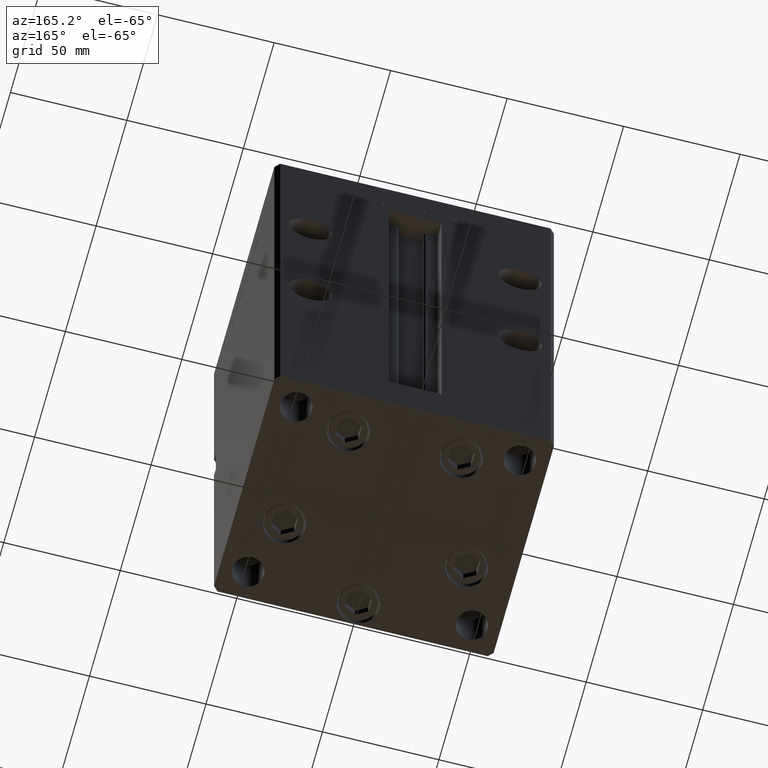
[diagram: clean part render]
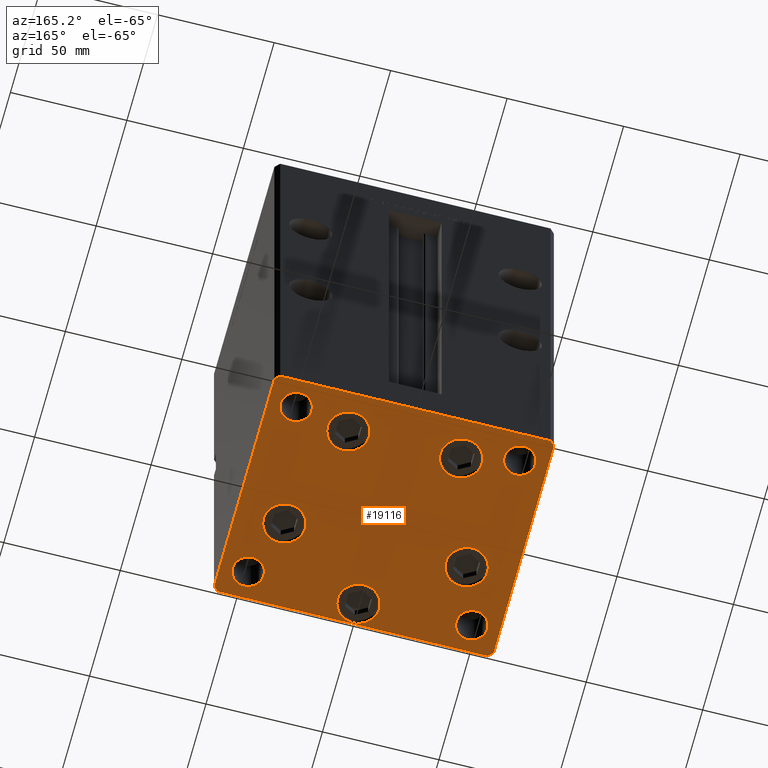
[diagram: same view with one face highlighted and labeled with its STEP entity id]
A machine part, auxiliary view. The second image highlights one B-rep face of the part: STEP entity #19116.
In plain terms, the highlighted planar face has unit normal (0, 0, -1).
Its self-contained STEP definition (entity closure, byte-faithful):
#249 = ORIENTED_EDGE ( 'NONE', *, *, #43363, .T. ) ;
#356 = EDGE_CURVE ( 'NONE', #24445, #52879, #9690, .T. ) ;
#359 = CARTESIAN_POINT ( 'NONE',  ( 24.19288941894911460, 33.71875000000000711, 0.000000000000000000 ) ) ;
#565 = DIRECTION ( 'NONE',  ( -0.000000000000000000, 0.000000000000000000, 1.000000000000000000 ) ) ;
#1030 = AXIS2_PLACEMENT_3D ( 'NONE', #47040, #9472, #10006 ) ;
#1078 = VERTEX_POINT ( 'NONE', #52244 ) ;
#1247 = EDGE_LOOP ( 'NONE', ( #249, #14469 ) ) ;
#1662 = AXIS2_PLACEMENT_3D ( 'NONE', #21854, #37790, #42650 ) ;
#2189 = CIRCLE ( 'NONE', #32414, 6.749999999999999112 ) ;
#2761 = FACE_BOUND ( 'NONE', #25464, .T. ) ;
#2776 = CIRCLE ( 'NONE', #1030, 9.000000000000001776 ) ;
#3144 = ORIENTED_EDGE ( 'NONE', *, *, #26812, .T. ) ;
#3220 = EDGE_CURVE ( 'NONE', #7242, #52632, #5831, .T. ) ;
#3376 = VERTEX_POINT ( 'NONE', #46270 ) ;
#3641 = CARTESIAN_POINT ( 'NONE',  ( -60.00000000000000000, -49.00000000000000000, 0.000000000000000000 ) ) ;
#3853 = EDGE_LOOP ( 'NONE', ( #11308, #44624 ) ) ;
#4370 = VERTEX_POINT ( 'NONE', #11200 ) ;
#4982 = CARTESIAN_POINT ( 'NONE',  ( -41.25000000000000000, 39.00000000000000000, 0.000000000000000000 ) ) ;
#5831 = LINE ( 'NONE', #22337, #18432 ) ;
#6250 = CIRCLE ( 'NONE', #8835, 6.749999999999999112 ) ;
#6850 = DIRECTION ( 'NONE',  ( 1.000000000000000000, 0.000000000000000000, 0.000000000000000000 ) ) ;
#6937 = VERTEX_POINT ( 'NONE', #37192 ) ;
#7088 = CARTESIAN_POINT ( 'NONE',  ( -48.00000000000000000, -39.00000000000000000, 0.000000000000000000 ) ) ;
#7091 = FACE_BOUND ( 'NONE', #34753, .T. ) ;
#7185 = EDGE_LOOP ( 'NONE', ( #28994, #42823 ) ) ;
#7242 = VERTEX_POINT ( 'NONE', #3641 ) ;
#7571 = VERTEX_POINT ( 'NONE', #46245 ) ;
#7625 = VERTEX_POINT ( 'NONE', #37131 ) ;
#7907 = DIRECTION ( 'NONE',  ( 0.7071067811865474617, 0.7071067811865474617, 0.000000000000000000 ) ) ;
#8078 = CARTESIAN_POINT ( 'NONE',  ( 5.082284216461515748E-15, -41.50000000000000000, 0.000000000000000000 ) ) ;
#8598 = DIRECTION ( 'NONE',  ( 1.000000000000000000, 0.000000000000000000, 0.000000000000000000 ) ) ;
#8645 = EDGE_LOOP ( 'NONE', ( #50178, #47326 ) ) ;
#8743 = DIRECTION ( 'NONE',  ( 1.000000000000000000, 0.000000000000000000, 0.000000000000000000 ) ) ;
#8835 = AXIS2_PLACEMENT_3D ( 'NONE', #11313, #10242, #23477 ) ;
#9142 = DIRECTION ( 'NONE',  ( -7.080503983578803823E-16, 1.000000000000000000, 0.000000000000000000 ) ) ;
#9257 = CIRCLE ( 'NONE', #43798, 9.000000000000000000 ) ;
#9289 = VERTEX_POINT ( 'NONE', #35224 ) ;
#9337 = EDGE_CURVE ( 'NONE', #13796, #7571, #47939, .T. ) ;
#9472 = DIRECTION ( 'NONE',  ( 0.000000000000000000, -0.000000000000000000, -1.000000000000000000 ) ) ;
#9610 = CARTESIAN_POINT ( 'NONE',  ( 41.25000000000000000, 38.99999999999999289, 0.000000000000000000 ) ) ;
#9690 = CIRCLE ( 'NONE', #34706, 9.000000000000000000 ) ;
#10006 = DIRECTION ( 'NONE',  ( 1.000000000000000000, 0.000000000000000000, 0.000000000000000000 ) ) ;
#10242 = DIRECTION ( 'NONE',  ( 0.000000000000000000, -0.000000000000000000, -1.000000000000000000 ) ) ;
#10265 = CIRCLE ( 'NONE', #17168, 9.000000000000001776 ) ;
#10933 = ORIENTED_EDGE ( 'NONE', *, *, #50967, .T. ) ;
#11026 = CARTESIAN_POINT ( 'NONE',  ( -57.99999999999999289, 50.99999999999997868, 0.000000000000000000 ) ) ;
#11200 = CARTESIAN_POINT ( 'NONE',  ( 59.99999999999994316, 49.00000000000000000, 0.000000000000000000 ) ) ;
#11308 = ORIENTED_EDGE ( 'NONE', *, *, #43534, .F. ) ;
#11313 = CARTESIAN_POINT ( 'NONE',  ( 48.00000000000000000, -38.99999999999999289, 0.000000000000000000 ) ) ;
#11697 = FACE_BOUND ( 'NONE', #1247, .T. ) ;
#11815 = VERTEX_POINT ( 'NONE', #30996 ) ;
#12028 = EDGE_CURVE ( 'NONE', #49027, #7242, #26337, .T. ) ;
#12664 = CIRCLE ( 'NONE', #48944, 9.000000000000001776 ) ;
#12909 = DIRECTION ( 'NONE',  ( 1.000000000000000000, 0.000000000000000000, 0.000000000000000000 ) ) ;
#13012 = CIRCLE ( 'NONE', #16516, 6.749999999999999112 ) ;
#13213 = ORIENTED_EDGE ( 'NONE', *, *, #9337, .F. ) ;
#13340 = DIRECTION ( 'NONE',  ( 0.000000000000000000, -0.000000000000000000, -1.000000000000000000 ) ) ;
#13796 = VERTEX_POINT ( 'NONE', #4982 ) ;
#14145 = VERTEX_POINT ( 'NONE', #37900 ) ;
#14469 = ORIENTED_EDGE ( 'NONE', *, *, #34794, .T. ) ;
#14954 = AXIS2_PLACEMENT_3D ( 'NONE', #15496, #15232, #15759 ) ;
#15085 = LINE ( 'NONE', #11026, #18161 ) ;
#15232 = DIRECTION ( 'NONE',  ( 0.000000000000000000, -0.000000000000000000, -1.000000000000000000 ) ) ;
#15496 = CARTESIAN_POINT ( 'NONE',  ( -24.19288941894912170, 33.71875000000000000, 0.000000000000000000 ) ) ;
#15616 = DIRECTION ( 'NONE',  ( 1.000000000000000000, 0.000000000000000000, 0.000000000000000000 ) ) ;
#15724 = ORIENTED_EDGE ( 'NONE', *, *, #12028, .T. ) ;
#15759 = DIRECTION ( 'NONE',  ( 1.000000000000000000, 0.000000000000000000, 0.000000000000000000 ) ) ;
#15901 = CARTESIAN_POINT ( 'NONE',  ( -48.00000000000000000, 39.00000000000000000, 0.000000000000000000 ) ) ;
#15965 = CARTESIAN_POINT ( 'NONE',  ( 48.00000000000000000, 38.99999999999999289, 0.000000000000000000 ) ) ;
#16351 = EDGE_CURVE ( 'NONE', #50414, #3376, #2776, .T. ) ;
#16458 = VERTEX_POINT ( 'NONE', #31358 ) ;
#16516 = AXIS2_PLACEMENT_3D ( 'NONE', #15901, #24006, #41000 ) ;
#16518 = VERTEX_POINT ( 'NONE', #9610 ) ;
#16688 = CIRCLE ( 'NONE', #14954, 9.000000000000000000 ) ;
#16698 = EDGE_CURVE ( 'NONE', #21205, #1078, #46803, .T. ) ;
#16711 = CARTESIAN_POINT ( 'NONE',  ( -39.12657522565562829, -13.83333333333333925, 0.000000000000000000 ) ) ;
#16905 = CARTESIAN_POINT ( 'NONE',  ( -60.00000000000000000, 48.99999999999995737, 0.000000000000000000 ) ) ;
#17073 = DIRECTION ( 'NONE',  ( 1.000000000000000000, 0.000000000000000000, 0.000000000000000000 ) ) ;
#17168 = AXIS2_PLACEMENT_3D ( 'NONE', #18197, #30609, #22787 ) ;
#17261 = CARTESIAN_POINT ( 'NONE',  ( 39.12657522565562829, -13.83333333333332860, 0.000000000000000000 ) ) ;
#17480 = CARTESIAN_POINT ( 'NONE',  ( 57.99999999999993605, 51.00000000000000711, 0.000000000000000000 ) ) ;
#18035 = EDGE_CURVE ( 'NONE', #7625, #9289, #31512, .T. ) ;
#18161 = VECTOR ( 'NONE', #28313, 1000.000000000000114 ) ;
#18197 = CARTESIAN_POINT ( 'NONE',  ( 24.19288941894911460, 33.71875000000000711, 0.000000000000000000 ) ) ;
#18432 = VECTOR ( 'NONE', #51264, 1000.000000000000114 ) ;
#18551 = CARTESIAN_POINT ( 'NONE',  ( -33.19288941894912170, 33.71875000000000000, 0.000000000000000000 ) ) ;
#18700 = VERTEX_POINT ( 'NONE', #48386 ) ;
#18718 = AXIS2_PLACEMENT_3D ( 'NONE', #7088, #35468, #27918 ) ;
#18888 = DIRECTION ( 'NONE',  ( 0.000000000000000000, -0.000000000000000000, -1.000000000000000000 ) ) ;
#19033 = CARTESIAN_POINT ( 'NONE',  ( -48.00000000000000000, 39.00000000000000000, 0.000000000000000000 ) ) ;
#19116 = ADVANCED_FACE ( 'NONE', ( #52249, #11697, #27922, #7091, #27650, #23329, #2761, #40600, #19277, #24132 ), #23868, .T. ) ;
#19140 = EDGE_CURVE ( 'NONE', #52879, #24445, #16688, .T. ) ;
#19235 = VERTEX_POINT ( 'NONE', #37067 ) ;
#19277 = FACE_OUTER_BOUND ( 'NONE', #30353, .T. ) ;
#19341 = CARTESIAN_POINT ( 'NONE',  ( -41.25000000000000000, -39.00000000000000000, 0.000000000000000000 ) ) ;
#19651 = ORIENTED_EDGE ( 'NONE', *, *, #16698, .T. ) ;
#19694 = DIRECTION ( 'NONE',  ( 1.000000000000000000, 0.000000000000000000, 0.000000000000000000 ) ) ;
#19789 = EDGE_CURVE ( 'NONE', #19235, #32804, #22623, .T. ) ;
#21119 = EDGE_CURVE ( 'NONE', #1078, #21205, #6250, .T. ) ;
#21205 = VERTEX_POINT ( 'NONE', #29568 ) ;
#21640 = DIRECTION ( 'NONE',  ( 0.000000000000000000, -0.000000000000000000, -1.000000000000000000 ) ) ;
#21854 = CARTESIAN_POINT ( 'NONE',  ( -48.00000000000000000, -39.00000000000000000, 0.000000000000000000 ) ) ;
#22172 = DIRECTION ( 'NONE',  ( 1.000000000000000000, 0.000000000000000000, 0.000000000000000000 ) ) ;
#22174 = EDGE_CURVE ( 'NONE', #6937, #14145, #32193, .T. ) ;
#22290 = VERTEX_POINT ( 'NONE', #50476 ) ;
#22337 = CARTESIAN_POINT ( 'NONE',  ( -60.00000000000000000, -49.00000000000000000, 0.000000000000000000 ) ) ;
#22623 = CIRCLE ( 'NONE', #24490, 9.000000000000000000 ) ;
#22752 = ORIENTED_EDGE ( 'NONE', *, *, #356, .T. ) ;
#22787 = DIRECTION ( 'NONE',  ( 1.000000000000000000, 0.000000000000000000, 0.000000000000000000 ) ) ;
#23130 = CARTESIAN_POINT ( 'NONE',  ( 48.00000000000000000, -38.99999999999999289, 0.000000000000000000 ) ) ;
#23329 = FACE_BOUND ( 'NONE', #3853, .T. ) ;
#23346 = CIRCLE ( 'NONE', #36246, 9.000000000000001776 ) ;
#23477 = DIRECTION ( 'NONE',  ( 1.000000000000000000, 0.000000000000000000, 0.000000000000000000 ) ) ;
#23629 = ORIENTED_EDGE ( 'NONE', *, *, #52743, .F. ) ;
#23821 = DIRECTION ( 'NONE',  ( -0.7071067811865487940, 0.7071067811865463515, 0.000000000000000000 ) ) ;
#23868 = PLANE ( 'NONE',  #48641 ) ;
#24006 = DIRECTION ( 'NONE',  ( -0.000000000000000000, 0.000000000000000000, 1.000000000000000000 ) ) ;
#24012 = CARTESIAN_POINT ( 'NONE',  ( 5.082284216461515748E-15, -41.50000000000000000, 0.000000000000000000 ) ) ;
#24132 = FACE_BOUND ( 'NONE', #7185, .T. ) ;
#24445 = VERTEX_POINT ( 'NONE', #42478 ) ;
#24490 = AXIS2_PLACEMENT_3D ( 'NONE', #24012, #18888, #19694 ) ;
#25464 = EDGE_LOOP ( 'NONE', ( #50592, #19651 ) ) ;
#26256 = ORIENTED_EDGE ( 'NONE', *, *, #3220, .T. ) ;
#26337 = LINE ( 'NONE', #16905, #35922 ) ;
#26500 = CIRCLE ( 'NONE', #18718, 6.749999999999999112 ) ;
#26586 = EDGE_LOOP ( 'NONE', ( #38145, #51853 ) ) ;
#26812 = EDGE_CURVE ( 'NONE', #11815, #22290, #30696, .T. ) ;
#27139 = DIRECTION ( 'NONE',  ( -0.000000000000000000, 0.000000000000000000, 1.000000000000000000 ) ) ;
#27650 = FACE_BOUND ( 'NONE', #26586, .T. ) ;
#27903 = CARTESIAN_POINT ( 'NONE',  ( -60.00000000000000000, 48.99999999999995737, 0.000000000000000000 ) ) ;
#27918 = DIRECTION ( 'NONE',  ( 1.000000000000000000, 0.000000000000000000, 0.000000000000000000 ) ) ;
#27922 = FACE_BOUND ( 'NONE', #8645, .T. ) ;
#28313 = DIRECTION ( 'NONE',  ( -0.7071067811865451302, -0.7071067811865500152, 0.000000000000000000 ) ) ;
#28668 = DIRECTION ( 'NONE',  ( 1.000000000000000000, 0.000000000000000000, 0.000000000000000000 ) ) ;
#28755 = AXIS2_PLACEMENT_3D ( 'NONE', #16711, #29129, #12909 ) ;
#28994 = ORIENTED_EDGE ( 'NONE', *, *, #45835, .T. ) ;
#29129 = DIRECTION ( 'NONE',  ( 0.000000000000000000, -0.000000000000000000, -1.000000000000000000 ) ) ;
#29253 = VERTEX_POINT ( 'NONE', #47143 ) ;
#29568 = CARTESIAN_POINT ( 'NONE',  ( 41.25000000000000000, -38.99999999999999289, 0.000000000000000000 ) ) ;
#29573 = EDGE_CURVE ( 'NONE', #16518, #16458, #2189, .T. ) ;
#29685 = LINE ( 'NONE', #46167, #51844 ) ;
#29734 = DIRECTION ( 'NONE',  ( 1.000000000000000000, 1.196361017915039486E-16, 0.000000000000000000 ) ) ;
#29915 = EDGE_CURVE ( 'NONE', #52632, #7625, #46752, .T. ) ;
#30353 = EDGE_LOOP ( 'NONE', ( #26256, #47684, #37077, #47786, #31105, #3144, #10933, #15724 ) ) ;
#30392 = AXIS2_PLACEMENT_3D ( 'NONE', #23130, #30411, #42846 ) ;
#30411 = DIRECTION ( 'NONE',  ( 0.000000000000000000, -0.000000000000000000, -1.000000000000000000 ) ) ;
#30422 = DIRECTION ( 'NONE',  ( -1.000000000000000000, -2.392722035830079958E-16, 0.000000000000000000 ) ) ;
#30609 = DIRECTION ( 'NONE',  ( 0.000000000000000000, -0.000000000000000000, -1.000000000000000000 ) ) ;
#30696 = LINE ( 'NONE', #17480, #32300 ) ;
#30996 = CARTESIAN_POINT ( 'NONE',  ( 57.99999999999993605, 51.00000000000000711, 0.000000000000000000 ) ) ;
#31013 = AXIS2_PLACEMENT_3D ( 'NONE', #37585, #565, #17073 ) ;
#31105 = ORIENTED_EDGE ( 'NONE', *, *, #45507, .T. ) ;
#31358 = CARTESIAN_POINT ( 'NONE',  ( 54.75000000000000000, 38.99999999999999289, 0.000000000000000000 ) ) ;
#31512 = LINE ( 'NONE', #53068, #40785 ) ;
#31719 = VERTEX_POINT ( 'NONE', #52512 ) ;
#32193 = CIRCLE ( 'NONE', #28755, 9.000000000000001776 ) ;
#32300 = VECTOR ( 'NONE', #30422, 1000.000000000000000 ) ;
#32414 = AXIS2_PLACEMENT_3D ( 'NONE', #15965, #53260, #48665 ) ;
#32459 = VECTOR ( 'NONE', #29734, 1000.000000000000000 ) ;
#32497 = DIRECTION ( 'NONE',  ( -0.000000000000000000, 0.000000000000000000, 1.000000000000000000 ) ) ;
#32709 = CARTESIAN_POINT ( 'NONE',  ( -39.12657522565562829, -13.83333333333333925, 0.000000000000000000 ) ) ;
#32804 = VERTEX_POINT ( 'NONE', #46560 ) ;
#33133 = EDGE_CURVE ( 'NONE', #3376, #50414, #12664, .T. ) ;
#33371 = DIRECTION ( 'NONE',  ( 0.000000000000000000, -1.000000000000000000, 0.000000000000000000 ) ) ;
#34457 = VECTOR ( 'NONE', #23821, 1000.000000000000000 ) ;
#34596 = EDGE_CURVE ( 'NONE', #32804, #19235, #9257, .T. ) ;
#34706 = AXIS2_PLACEMENT_3D ( 'NONE', #45960, #21640, #22172 ) ;
#34753 = EDGE_LOOP ( 'NONE', ( #49126, #39274 ) ) ;
#34794 = EDGE_CURVE ( 'NONE', #29253, #18700, #45485, .T. ) ;
#35224 = CARTESIAN_POINT ( 'NONE',  ( 60.00000000000001421, -48.99999999999999289, 0.000000000000000000 ) ) ;
#35468 = DIRECTION ( 'NONE',  ( 0.000000000000000000, -0.000000000000000000, -1.000000000000000000 ) ) ;
#35922 = VECTOR ( 'NONE', #33371, 1000.000000000000000 ) ;
#36246 = AXIS2_PLACEMENT_3D ( 'NONE', #32709, #37539, #28668 ) ;
#36734 = AXIS2_PLACEMENT_3D ( 'NONE', #19033, #27139, #6850 ) ;
#37067 = CARTESIAN_POINT ( 'NONE',  ( 9.000000000000005329, -41.50000000000000000, 0.000000000000000000 ) ) ;
#37077 = ORIENTED_EDGE ( 'NONE', *, *, #18035, .T. ) ;
#37131 = CARTESIAN_POINT ( 'NONE',  ( 58.00000000000000000, -51.00000000000000711, 0.000000000000000000 ) ) ;
#37192 = CARTESIAN_POINT ( 'NONE',  ( -48.12657522565562829, -13.83333333333333925, 0.000000000000000000 ) ) ;
#37539 = DIRECTION ( 'NONE',  ( 0.000000000000000000, -0.000000000000000000, -1.000000000000000000 ) ) ;
#37585 = CARTESIAN_POINT ( 'NONE',  ( 48.00000000000000000, 38.99999999999999289, 0.000000000000000000 ) ) ;
#37790 = DIRECTION ( 'NONE',  ( 0.000000000000000000, -0.000000000000000000, -1.000000000000000000 ) ) ;
#37900 = CARTESIAN_POINT ( 'NONE',  ( -30.12657522565562829, -13.83333333333333748, 0.000000000000000000 ) ) ;
#38145 = ORIENTED_EDGE ( 'NONE', *, *, #22174, .T. ) ;
#38204 = EDGE_CURVE ( 'NONE', #31719, #52067, #26500, .T. ) ;
#39274 = ORIENTED_EDGE ( 'NONE', *, *, #19789, .T. ) ;
#40513 = DIRECTION ( 'NONE',  ( 0.000000000000000000, -0.000000000000000000, -1.000000000000000000 ) ) ;
#40600 = FACE_BOUND ( 'NONE', #41590, .T. ) ;
#40785 = VECTOR ( 'NONE', #7907, 1000.000000000000114 ) ;
#41000 = DIRECTION ( 'NONE',  ( 1.000000000000000000, 0.000000000000000000, 0.000000000000000000 ) ) ;
#41590 = EDGE_LOOP ( 'NONE', ( #13213, #23629 ) ) ;
#42426 = CARTESIAN_POINT ( 'NONE',  ( -57.99999999999997868, -51.00000000000001421, 0.000000000000000000 ) ) ;
#42478 = CARTESIAN_POINT ( 'NONE',  ( -15.19288941894912170, 33.71875000000000000, 0.000000000000000000 ) ) ;
#42650 = DIRECTION ( 'NONE',  ( 1.000000000000000000, 0.000000000000000000, 0.000000000000000000 ) ) ;
#42823 = ORIENTED_EDGE ( 'NONE', *, *, #38204, .T. ) ;
#42846 = DIRECTION ( 'NONE',  ( 1.000000000000000000, 0.000000000000000000, 0.000000000000000000 ) ) ;
#43363 = EDGE_CURVE ( 'NONE', #18700, #29253, #10265, .T. ) ;
#43534 = EDGE_CURVE ( 'NONE', #16458, #16518, #46488, .T. ) ;
#43798 = AXIS2_PLACEMENT_3D ( 'NONE', #8078, #40513, #8598 ) ;
#43866 = DIRECTION ( 'NONE',  ( 1.000000000000000000, 0.000000000000000000, 0.000000000000000000 ) ) ;
#44081 = LINE ( 'NONE', #48414, #34457 ) ;
#44507 = ORIENTED_EDGE ( 'NONE', *, *, #19140, .T. ) ;
#44624 = ORIENTED_EDGE ( 'NONE', *, *, #29573, .F. ) ;
#44790 = CARTESIAN_POINT ( 'NONE',  ( 30.12657522565562829, -13.83333333333332860, 0.000000000000000000 ) ) ;
#45485 = CIRCLE ( 'NONE', #48976, 9.000000000000001776 ) ;
#45507 = EDGE_CURVE ( 'NONE', #4370, #11815, #44081, .T. ) ;
#45835 = EDGE_CURVE ( 'NONE', #52067, #31719, #48302, .T. ) ;
#45960 = CARTESIAN_POINT ( 'NONE',  ( -24.19288941894912170, 33.71875000000000000, 0.000000000000000000 ) ) ;
#46167 = CARTESIAN_POINT ( 'NONE',  ( 60.00000000000001421, -48.99999999999999289, 0.000000000000000000 ) ) ;
#46245 = CARTESIAN_POINT ( 'NONE',  ( -54.75000000000000000, 39.00000000000000000, 0.000000000000000000 ) ) ;
#46270 = CARTESIAN_POINT ( 'NONE',  ( 48.12657522565562829, -13.83333333333332682, 0.000000000000000000 ) ) ;
#46488 = CIRCLE ( 'NONE', #31013, 6.749999999999999112 ) ;
#46557 = EDGE_CURVE ( 'NONE', #14145, #6937, #23346, .T. ) ;
#46560 = CARTESIAN_POINT ( 'NONE',  ( -8.999999999999994671, -41.50000000000000000, 0.000000000000000000 ) ) ;
#46752 = LINE ( 'NONE', #42426, #32459 ) ;
#46803 = CIRCLE ( 'NONE', #30392, 6.749999999999999112 ) ;
#47040 = CARTESIAN_POINT ( 'NONE',  ( 39.12657522565562829, -13.83333333333332860, 0.000000000000000000 ) ) ;
#47143 = CARTESIAN_POINT ( 'NONE',  ( 33.19288941894911460, 33.71875000000000711, 0.000000000000000000 ) ) ;
#47326 = ORIENTED_EDGE ( 'NONE', *, *, #33133, .T. ) ;
#47684 = ORIENTED_EDGE ( 'NONE', *, *, #29915, .T. ) ;
#47786 = ORIENTED_EDGE ( 'NONE', *, *, #51693, .T. ) ;
#47939 = CIRCLE ( 'NONE', #36734, 6.749999999999999112 ) ;
#48302 = CIRCLE ( 'NONE', #1662, 6.749999999999999112 ) ;
#48386 = CARTESIAN_POINT ( 'NONE',  ( 15.19288941894911105, 33.71875000000000711, 0.000000000000000000 ) ) ;
#48414 = CARTESIAN_POINT ( 'NONE',  ( 59.99999999999994316, 49.00000000000000000, 0.000000000000000000 ) ) ;
#48458 = CARTESIAN_POINT ( 'NONE',  ( 0.000000000000000000, 0.000000000000000000, 0.000000000000000000 ) ) ;
#48641 = AXIS2_PLACEMENT_3D ( 'NONE', #48458, #32497, #43866 ) ;
#48665 = DIRECTION ( 'NONE',  ( 1.000000000000000000, 0.000000000000000000, 0.000000000000000000 ) ) ;
#48944 = AXIS2_PLACEMENT_3D ( 'NONE', #17261, #52107, #15616 ) ;
#48976 = AXIS2_PLACEMENT_3D ( 'NONE', #359, #13340, #8743 ) ;
#49027 = VERTEX_POINT ( 'NONE', #27903 ) ;
#49126 = ORIENTED_EDGE ( 'NONE', *, *, #34596, .T. ) ;
#50178 = ORIENTED_EDGE ( 'NONE', *, *, #16351, .T. ) ;
#50414 = VERTEX_POINT ( 'NONE', #44790 ) ;
#50476 = CARTESIAN_POINT ( 'NONE',  ( -57.99999999999999289, 50.99999999999997868, 0.000000000000000000 ) ) ;
#50592 = ORIENTED_EDGE ( 'NONE', *, *, #21119, .T. ) ;
#50967 = EDGE_CURVE ( 'NONE', #22290, #49027, #15085, .T. ) ;
#51264 = DIRECTION ( 'NONE',  ( 0.7071067811865474617, -0.7071067811865474617, 0.000000000000000000 ) ) ;
#51693 = EDGE_CURVE ( 'NONE', #9289, #4370, #29685, .T. ) ;
#51844 = VECTOR ( 'NONE', #9142, 1000.000000000000000 ) ;
#51853 = ORIENTED_EDGE ( 'NONE', *, *, #46557, .T. ) ;
#51939 = EDGE_LOOP ( 'NONE', ( #44507, #22752 ) ) ;
#52067 = VERTEX_POINT ( 'NONE', #19341 ) ;
#52107 = DIRECTION ( 'NONE',  ( 0.000000000000000000, -0.000000000000000000, -1.000000000000000000 ) ) ;
#52128 = CARTESIAN_POINT ( 'NONE',  ( -57.99999999999997868, -51.00000000000001421, 0.000000000000000000 ) ) ;
#52244 = CARTESIAN_POINT ( 'NONE',  ( 54.75000000000000000, -38.99999999999999289, 0.000000000000000000 ) ) ;
#52249 = FACE_BOUND ( 'NONE', #51939, .T. ) ;
#52512 = CARTESIAN_POINT ( 'NONE',  ( -54.75000000000000000, -39.00000000000000000, 0.000000000000000000 ) ) ;
#52632 = VERTEX_POINT ( 'NONE', #52128 ) ;
#52743 = EDGE_CURVE ( 'NONE', #7571, #13796, #13012, .T. ) ;
#52879 = VERTEX_POINT ( 'NONE', #18551 ) ;
#53068 = CARTESIAN_POINT ( 'NONE',  ( 58.00000000000000000, -51.00000000000000711, 0.000000000000000000 ) ) ;
#53260 = DIRECTION ( 'NONE',  ( -0.000000000000000000, 0.000000000000000000, 1.000000000000000000 ) ) ;